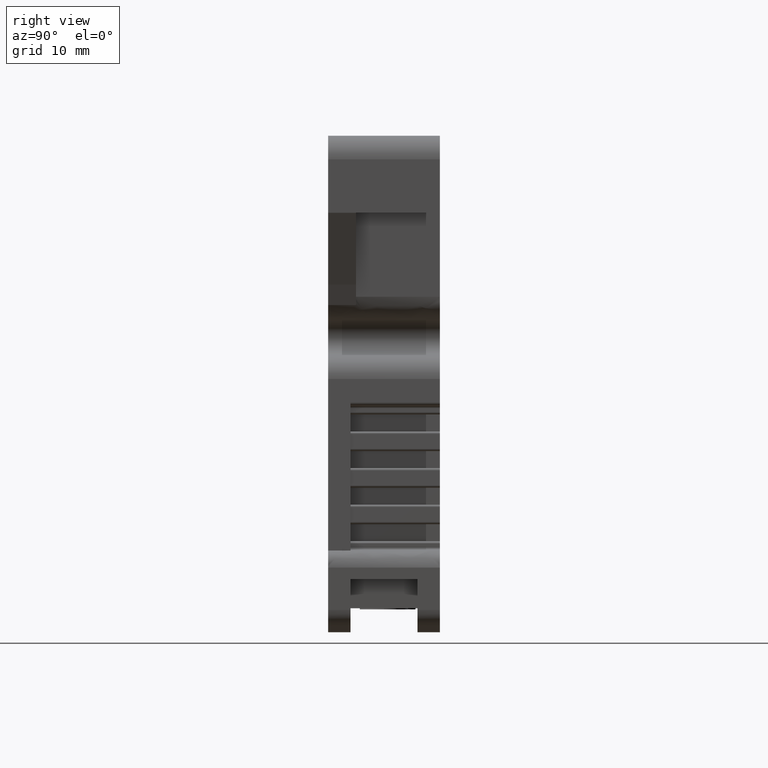
[diagram: clean part render]
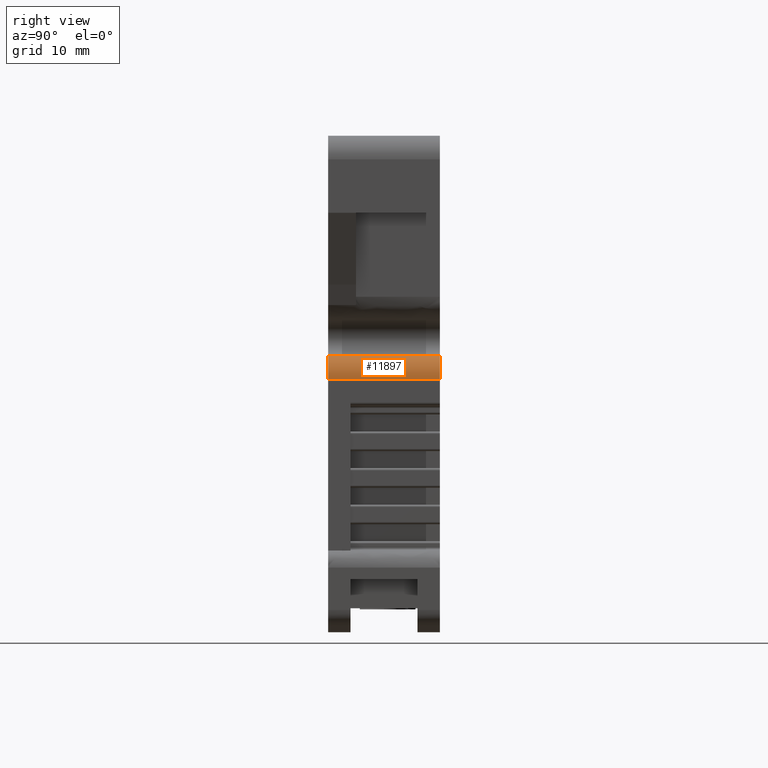
[diagram: same view with one face highlighted and labeled with its STEP entity id]
A machine part, right view. The second image highlights one B-rep face of the part: STEP entity #11897.
In plain terms, the highlighted face is a freeform B-spline surface patch.
Its self-contained STEP definition (entity closure, byte-faithful):
#26 = CARTESIAN_POINT ( 'NONE',  ( 20.15986904166157200, -9.901244391999823000, 20.48367492906435700 ) ) ;
#30 = CARTESIAN_POINT ( 'NONE',  ( 21.09827197625078200, -9.901244391999819400, 19.78549626974401900 ) ) ;
#37 = CARTESIAN_POINT ( 'NONE',  ( 21.09827197625075700, -9.901244391999814100, 18.44369244514722100 ) ) ;
#369 = CARTESIAN_POINT ( 'NONE',  ( 20.15986904166157200, -0.1012443920222215300, 20.48367492906435300 ) ) ;
#370 = CARTESIAN_POINT ( 'NONE',  ( 21.09827197625078600, -9.901244391999810500, 19.78549626974402300 ) ) ;
#383 = FACE_OUTER_BOUND ( 'NONE', #5731, .T. ) ;
#384 = CARTESIAN_POINT ( 'NONE',  ( 19.19568167501058300, -9.901244391999817700, 20.51170115736403000 ) ) ;
#386 = CARTESIAN_POINT ( 'NONE',  ( 20.15986904166157200, -9.901244391999812300, 20.48367492906435300 ) ) ;
#401 = CARTESIAN_POINT ( 'NONE',  ( 21.09827197625079300, -0.1012443920222223700, 18.44369244514722400 ) ) ;
#403 = CARTESIAN_POINT ( 'NONE',  ( 21.09827197625079300, -9.901244391999812300, 18.44369244514722400 ) ) ;
#404 = CARTESIAN_POINT ( 'NONE',  ( 19.19568167501058300, -0.1012443920222226300, 20.51170115736403000 ) ) ;
#408 = CARTESIAN_POINT ( 'NONE',  ( 21.09827197625078600, -0.1012443920222205100, 19.78549626974402300 ) ) ;
#841 = CARTESIAN_POINT ( 'NONE',  ( 19.19568167247400600, -0.1012443920222224900, 20.51170115743777000 ) ) ;
#846 = CARTESIAN_POINT ( 'NONE',  ( 21.09827197625078600, -0.1012443920222205100, 19.78549626974402300 ) ) ;
#847 = CARTESIAN_POINT ( 'NONE',  ( 20.15986904166157200, -0.1012443920222215000, 20.48367492906435300 ) ) ;
#863 = CARTESIAN_POINT ( 'NONE',  ( 21.09827197625077500, -0.1012443920222216200, 18.44369244514722100 ) ) ;
#1012 = DIRECTION ( 'NONE',  ( -0.0000000000000000000, -1.000000000000000000, -0.0000000000000000000 ) ) ;
#1020 = LINE ( 'NONE', #1051, #10269 ) ;
#1051 = CARTESIAN_POINT ( 'NONE',  ( 21.09827197625075700, -9.901244391999814100, 18.44369244514722100 ) ) ;
#1075 = DIRECTION ( 'NONE',  ( -0.0000000000000000000, -1.000000000000000000, -0.0000000000000000000 ) ) ;
#1078 = CARTESIAN_POINT ( 'NONE',  ( 19.19568167501058300, -5.001244392011019000, 20.51170115736403300 ) ) ;
#1081 = LINE ( 'NONE', #1078, #10318 ) ;
#1091 = CARTESIAN_POINT ( 'NONE',  ( 19.19568167392619200, -9.901244391999815900, 20.51170115739555300 ) ) ;
#2564 =( BOUNDED_SURFACE ( )  B_SPLINE_SURFACE ( 3, 1, ( 
 ( #384, #404 ),
 ( #386, #369 ),
 ( #370, #408 ),
 ( #403, #401 ) ),
 .UNSPECIFIED., .F., .F., .F. ) 
 B_SPLINE_SURFACE_WITH_KNOTS ( ( 4, 4 ),
 ( 2, 2 ),
 ( 0.006777400942434038200, 0.2499999999999997200 ),
 ( 0.0000000000000000000, 1.000000000000000000 ),
 .UNSPECIFIED. ) 
 GEOMETRIC_REPRESENTATION_ITEM ( )  RATIONAL_B_SPLINE_SURFACE ( (
 ( 0.9732578615385398800, 0.9732578615385398800),
 ( 0.6577526205128470000, 0.6577526205128470000),
 ( 0.5000000000000003300, 0.5000000000000003300),
 ( 0.4999999999999999400, 0.4999999999999999400) ) ) 
 REPRESENTATION_ITEM ( '' )  SURFACE ( )  );
#2603 =( BOUNDED_CURVE ( )  B_SPLINE_CURVE ( 3, ( #1091, #26, #30, #37 ),
 .UNSPECIFIED., .F., .T. ) 
 B_SPLINE_CURVE_WITH_KNOTS ( ( 4, 4 ),
 ( 1.069095307029768300E-012, 0.003090884851380490300 ),
 .UNSPECIFIED. ) 
 CURVE ( )  GEOMETRIC_REPRESENTATION_ITEM ( )  RATIONAL_B_SPLINE_CURVE ( ( 0.9732578615385397700, 0.6577526205128468900, 0.5000000000000003300, 0.4999999999999998300 ) ) 
 REPRESENTATION_ITEM ( '' )  );
#2652 =( BOUNDED_CURVE ( )  B_SPLINE_CURVE ( 3, ( #863, #846, #847, #841 ),
 .UNSPECIFIED., .F., .F. ) 
 B_SPLINE_CURVE_WITH_KNOTS ( ( 4, 4 ),
 ( 0.0000000000000000000, 0.003091448673396787700 ),
 .UNSPECIFIED. ) 
 CURVE ( )  GEOMETRIC_REPRESENTATION_ITEM ( )  RATIONAL_B_SPLINE_CURVE ( ( 0.4999999999999999400, 0.5000000000000003300, 0.6577526205128470000, 0.9732578615385398800 ) ) 
 REPRESENTATION_ITEM ( '' )  );
#5731 = EDGE_LOOP ( 'NONE', ( #14786, #14794, #14784, #14772 ) ) ;
#6969 = CARTESIAN_POINT ( 'NONE',  ( 19.19568167392619200, -9.901244391999815900, 20.51170115739555300 ) ) ;
#7002 = CARTESIAN_POINT ( 'NONE',  ( 21.09827197625077500, -0.1012443920222216200, 18.44369244514722100 ) ) ;
#7032 = CARTESIAN_POINT ( 'NONE',  ( 21.09827197625075700, -9.901244391999814100, 18.44369244514722100 ) ) ;
#7049 = CARTESIAN_POINT ( 'NONE',  ( 19.19568167247400600, -0.1012443920222224900, 20.51170115743777000 ) ) ;
#10269 = VECTOR ( 'NONE', #1012, 1000.000000000000000 ) ;
#10318 = VECTOR ( 'NONE', #1075, 1000.000000000000000 ) ;
#11517 = VERTEX_POINT ( 'NONE', #7002 ) ;
#11521 = VERTEX_POINT ( 'NONE', #6969 ) ;
#11543 = VERTEX_POINT ( 'NONE', #7032 ) ;
#11570 = VERTEX_POINT ( 'NONE', #7049 ) ;
#11897 = ADVANCED_FACE ( 'NONE', ( #383 ), #2564, .T. ) ;
#11980 = EDGE_CURVE ( 'NONE', #11517, #11570, #2652, .T. ) ;
#12029 = EDGE_CURVE ( 'NONE', #11517, #11543, #1020, .T. ) ;
#12036 = EDGE_CURVE ( 'NONE', #11570, #11521, #1081, .T. ) ;
#12051 = EDGE_CURVE ( 'NONE', #11521, #11543, #2603, .T. ) ;
#14772 = ORIENTED_EDGE ( 'NONE', *, *, #11980, .T. ) ;
#14784 = ORIENTED_EDGE ( 'NONE', *, *, #12029, .F. ) ;
#14786 = ORIENTED_EDGE ( 'NONE', *, *, #12036, .T. ) ;
#14794 = ORIENTED_EDGE ( 'NONE', *, *, #12051, .T. ) ;